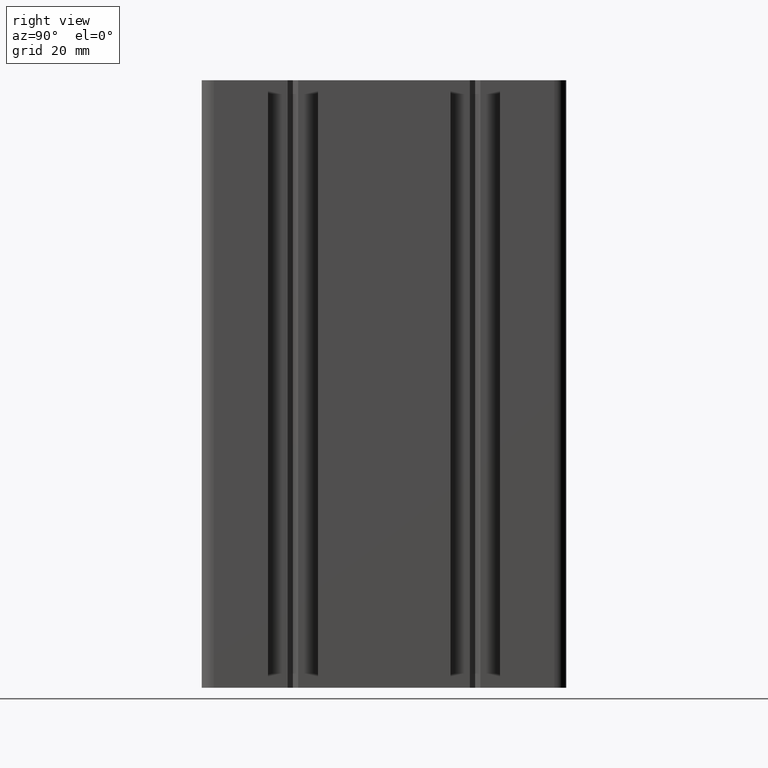
[diagram: clean part render]
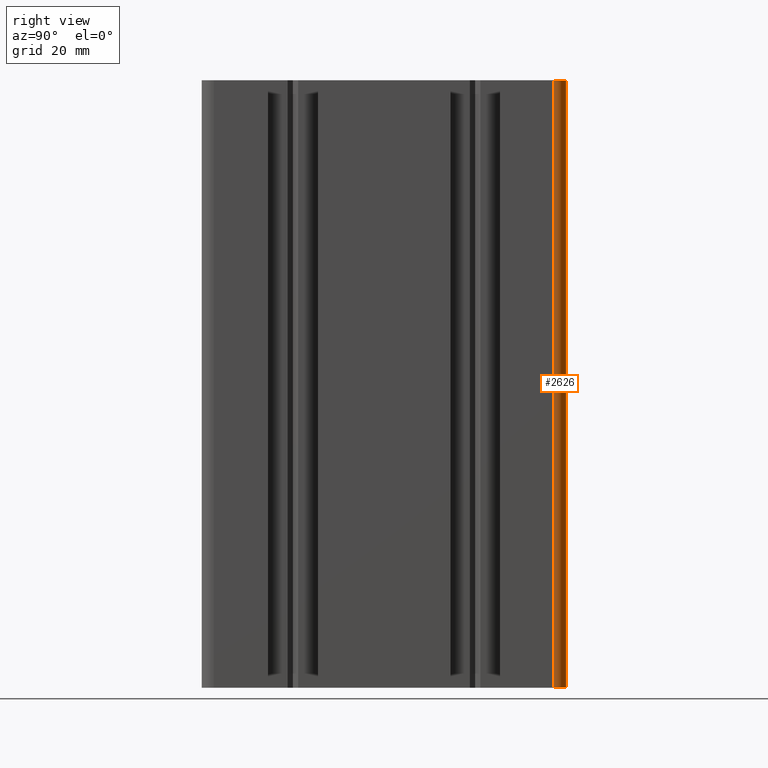
[diagram: same view with one face highlighted and labeled with its STEP entity id]
A machine part, right view. The second image highlights one B-rep face of the part: STEP entity #2626.
In plain terms, the highlighted cylindrical surface (edge-blend (fillet) strip) has radius 2 mm, axis along (-0, -0, -1).
Its self-contained STEP definition (entity closure, byte-faithful):
#815 = EDGE_CURVE ( 'NONE', #846, #828, #4425, .T. ) ;
#828 = VERTEX_POINT ( 'NONE', #4459 ) ;
#846 = VERTEX_POINT ( 'NONE', #4532 ) ;
#1338 = VERTEX_POINT ( 'NONE', #5393 ) ;
#1343 = EDGE_CURVE ( 'NONE', #1360, #1338, #5386, .T. ) ;
#1360 = VERTEX_POINT ( 'NONE', #5414 ) ;
#2570 = ORIENTED_EDGE ( 'NONE', *, *, #2627, .F. ) ;
#2573 = EDGE_CURVE ( 'NONE', #846, #1360, #7375, .T. ) ;
#2576 = ORIENTED_EDGE ( 'NONE', *, *, #1343, .T. ) ;
#2623 = EDGE_LOOP ( 'NONE', ( #2576, #2570, #2630, #2629 ) ) ;
#2626 = ADVANCED_FACE ( 'NONE', ( #7465 ), #7452, .T. ) ;
#2627 = EDGE_CURVE ( 'NONE', #828, #1338, #7507, .T. ) ;
#2629 = ORIENTED_EDGE ( 'NONE', *, *, #2573, .T. ) ;
#2630 = ORIENTED_EDGE ( 'NONE', *, *, #815, .F. ) ;
#4425 = CIRCLE ( 'NONE', #4436, 1.999999999999998200 ) ;
#4436 = AXIS2_PLACEMENT_3D ( 'NONE', #4475, #4461, #4460 ) ;
#4459 = CARTESIAN_POINT ( 'NONE',  ( 13.00000000000001100, 29.99999999999998900, 100.0000000000000000 ) ) ;
#4460 = DIRECTION ( 'NONE',  ( 1.000000000000000000, 0.0000000000000000000, 0.0000000000000000000 ) ) ;
#4461 = DIRECTION ( 'NONE',  ( 0.0000000000000000000, 0.0000000000000000000, 1.000000000000000000 ) ) ;
#4475 = CARTESIAN_POINT ( 'NONE',  ( 13.00000000000001100, 27.99999999999998900, 100.0000000000000000 ) ) ;
#4532 = CARTESIAN_POINT ( 'NONE',  ( 15.00000000000001100, 27.99999999999998900, 100.0000000000000000 ) ) ;
#5386 = CIRCLE ( 'NONE', #5437, 1.999999999999998200 ) ;
#5393 = CARTESIAN_POINT ( 'NONE',  ( 13.00000000000001100, 29.99999999999998900, 0.0000000000000000000 ) ) ;
#5414 = CARTESIAN_POINT ( 'NONE',  ( 15.00000000000001100, 27.99999999999998900, 0.0000000000000000000 ) ) ;
#5434 = DIRECTION ( 'NONE',  ( 1.000000000000000000, 0.0000000000000000000, 0.0000000000000000000 ) ) ;
#5435 = DIRECTION ( 'NONE',  ( 0.0000000000000000000, 0.0000000000000000000, 1.000000000000000000 ) ) ;
#5436 = CARTESIAN_POINT ( 'NONE',  ( 13.00000000000001100, 27.99999999999998900, 0.0000000000000000000 ) ) ;
#5437 = AXIS2_PLACEMENT_3D ( 'NONE', #5436, #5435, #5434 ) ;
#7359 = VECTOR ( 'NONE', #7401, 1000.000000000000000 ) ;
#7375 = LINE ( 'NONE', #7415, #7359 ) ;
#7401 = DIRECTION ( 'NONE',  ( -0.0000000000000000000, -0.0000000000000000000, -1.000000000000000000 ) ) ;
#7415 = CARTESIAN_POINT ( 'NONE',  ( 15.00000000000001100, 27.99999999999998900, 100.0000000000000000 ) ) ;
#7446 = DIRECTION ( 'NONE',  ( -1.000000000000000000, 0.0000000000000000000, 0.0000000000000000000 ) ) ;
#7447 = DIRECTION ( 'NONE',  ( -0.0000000000000000000, -0.0000000000000000000, -1.000000000000000000 ) ) ;
#7448 = CARTESIAN_POINT ( 'NONE',  ( 13.00000000000001100, 27.99999999999998900, 100.0000000000000000 ) ) ;
#7449 = AXIS2_PLACEMENT_3D ( 'NONE', #7448, #7447, #7446 ) ;
#7452 = CYLINDRICAL_SURFACE ( 'NONE', #7449, 1.999999999999998200 ) ;
#7465 = FACE_OUTER_BOUND ( 'NONE', #2623, .T. ) ;
#7504 = DIRECTION ( 'NONE',  ( -0.0000000000000000000, -0.0000000000000000000, -1.000000000000000000 ) ) ;
#7505 = VECTOR ( 'NONE', #7504, 1000.000000000000000 ) ;
#7506 = CARTESIAN_POINT ( 'NONE',  ( 13.00000000000001100, 29.99999999999998900, 100.0000000000000000 ) ) ;
#7507 = LINE ( 'NONE', #7506, #7505 ) ;